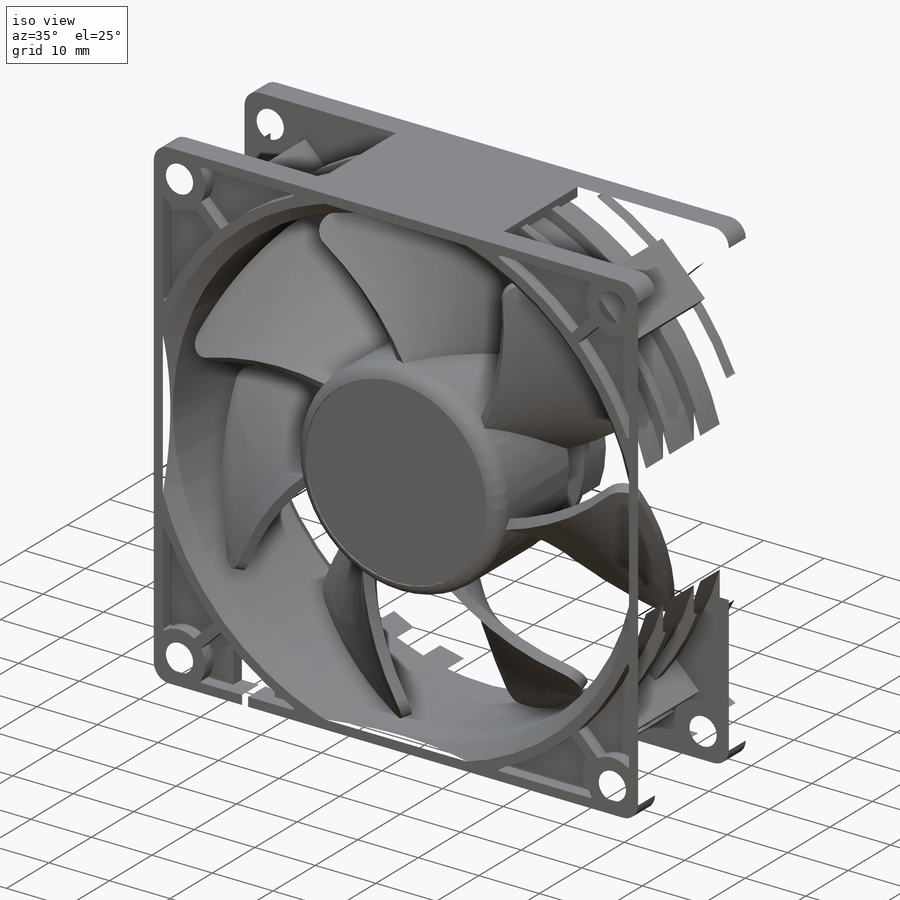
[diagram: iso view]
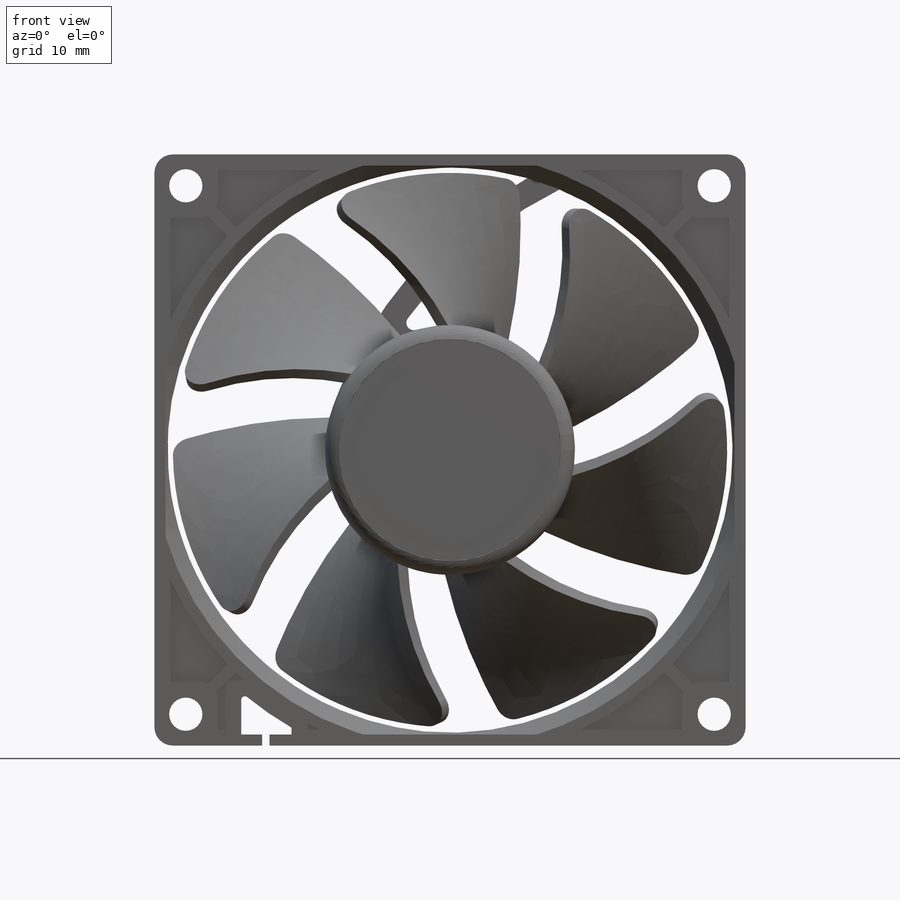
[diagram: front view]
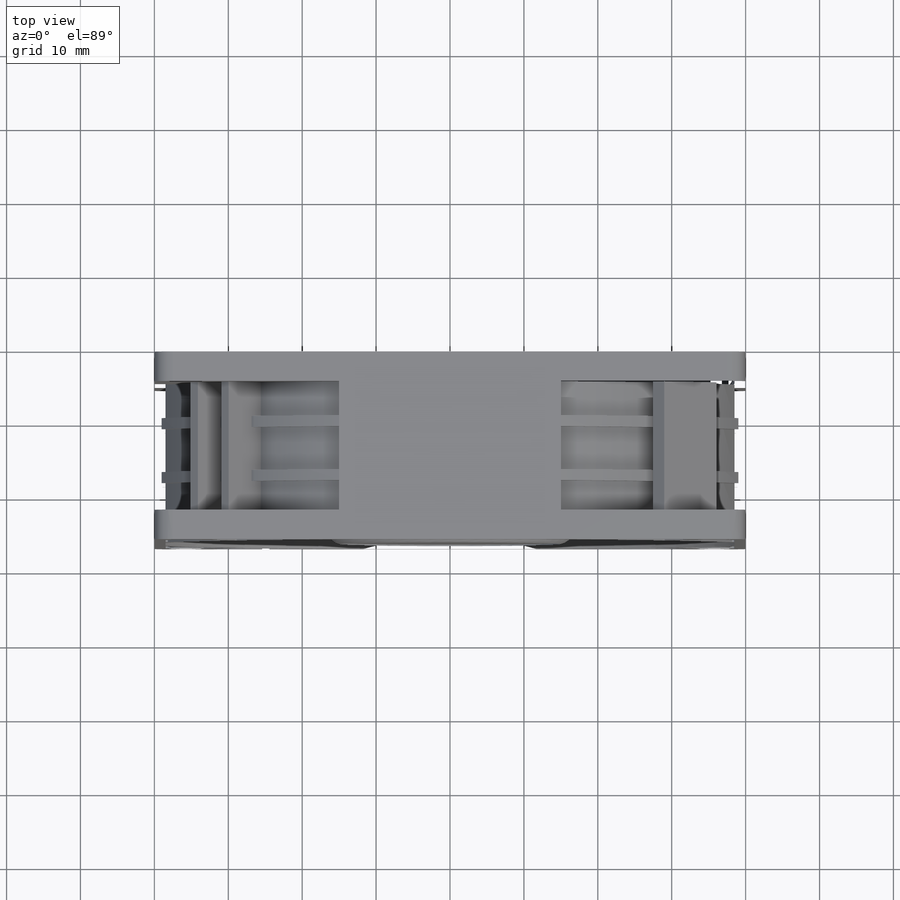
[diagram: top view]
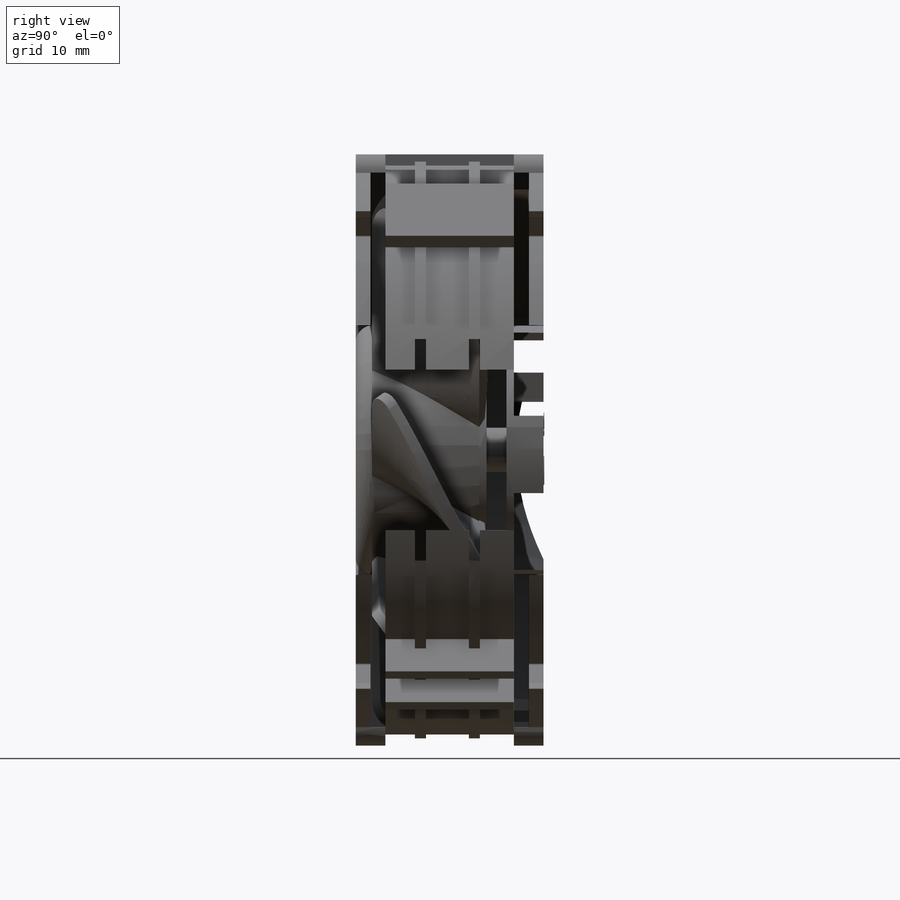
[diagram: right view]
SOLIDWORKS PART (.sldprt)
format: sldprt  version: not decoded by parser v0  size: 3,753,984 bytes
history: native  units: mm
features: sketch x22, extrude x13, plane x9, fillet x5, cut_extrude x4, chamfer x2, material x1, shell x1, sweep x1, surface_op x1, mirror x1, pattern_circular x1 (+8 scaffold rows collapsed)
feature tree (69):
  scaffold x8  (default folders/planes/origin — collapsed)
  material  "材質 <未指定>"
  plane  "前基準面"
  plane  "上基準面"
  plane  "右基準面"
  sketch  "草圖1"  dims[D1=33.8mm]
  extrude  "伸長1"  Depth=16.7mm
  shell  "薄殼1"  Thickness=2mm
  sketch  "草圖5"  dims[D1=33.8mm D2=30.8mm]
  extrude  "伸長3"  [1 undecoded]
  plane  "平面3"  Offset=3.7mm
  sketch  "草圖6"  dims[D1=33.8mm]
  extrude  "伸長4"  Depth=5mm
  sketch  "草圖16"  dims[D1=6.0mm]
  extrude  "伸長5"  [1 undecoded]
  sketch  "草圖17"  dims[D1=~15.487199mm]
  extrude  "伸長6"  Depth=14mm
  sketch  "草圖18"  dims[D5=76.5mm D1=80.0mm D2=80.0mm D3=40.0mm D4=40.0mm]
  extrude  "伸長7"  Depth=16.7mm
  sketch  "草圖20"  dims[c1.D1=5.0mm c1.D2=5.0mm c2.D1=30.0mm c2.D2=28.0mm c2.D3=40.0mm c2.D4=4.0mm c2.D5=5.0mm c3.D2=4.0mm c3.D1=59.0mm]
  sketch  "草圖21"  dims[D1=80.0mm]
  sweep  "除料-掃出2"
  chamfer  "導角9"  Distance=4mm
  plane  "平面4"  Offset=19mm
  sketch  "草圖23"  dims[c1.D1=~2.622396mm c1.D4=4.5mm c2.D1=4.25mm c2.D2=4.25mm c2.D5=105.0mm c2.D6=105.0mm c2.D3=2.0 c3.D5=2.0]
  chamfer  "導角5"  Distance=2mm Angle=45deg
  fillet  "圓角6"  Radius=2.5mm
  sketch  "草圖27"  dims[D1=30.0mm]
  cut_extrude  "伸長14"  Depth=0.2mm
  sketch  "草圖33"
  extrude  "伸長20"  Depth=0.1mm
  fillet  "圓角13"  Radius=2.5mm
  plane  "平面5"  Offset=2mm
  sketch  "草圖34"  dims[D1=75.0mm]
  sketch  "草圖35"  dims[D1=~21.278413mm]
  sketch  "草圖36"
  surface_op  "曲面-伸長1"
  fillet  "圓角18"  Radius=2.5mm
  fillet  "圓角20"  Radius=2.5mm
  plane  "平面6"  Offset=9.5mm
  sketch  "草圖40"  dims[D1=1.8mm D2=1.5mm]
  extrude  "填料-伸長1"  Depth=1.5mm
  plane  "平面7"  Offset=5.8mm
  sketch  "草圖41"  dims[c1.D1=2.5mm c1.D2=2.5mm c1.D3=2.5mm c1.D4=2.5mm c1.D5=2.5mm c2.D1=1.8mm c2.D2=1.5mm c2.D3=1.5mm c2.D4=1.5mm c2.D5=1.5mm]
  extrude  "填料-伸長2"  Depth=1.5mm
  sketch  "草圖42"  dims[c1.D1=~96.431797mm c2.D1=45.0deg c2.D6=~14.819143mm c3.D6=90.0deg c3.D8=~13.112107mm c4.D8=90.0deg c4.D9=46.0mm c4.D2=~68.187577mm c5.D2=90.0deg c5.D3=41.0mm c5.D4=10.0mm c5.D5=5.0mm c5.D6=40.0mm c5.D8=7.0mm c5.D13=~58.130331mm c6.D6=40.0mm c6.D14=1.4mm c6.D15=4.5mm c6.D16=4.1mm c7.D15=4.5mm c7.D16=~13.79795mm c8.D16=90.0deg c9.D16=1.4mm c9.D2=2.25mm c9.D6=1.4mm c9.D13=40.0mm c10.D16=10.0mm c10.D17=~0.567209mm c10.D13=46.0mm c11.D17=~0.989949mm c12.D17=90.0deg c12.D7=7.0mm c12.D16=~1.603386mm c12.D2=5.35mm c12.D3=5.35mm c12.D4=2.2mm c12.D5=2.2mm c12.D10=2.2mm c12.D11=1.1mm c12.D12=1.1mm]
  extrude  "填料-伸長3"  [1 undecoded]
  sketch  "草圖45"  dims[c1.D7=0.2mm c1.D10=0.2mm c1.D11=0.2mm c1.D1=1.5mm c1.D2=1.5mm c1.D3=1.5mm c1.D4=1.5mm c2.D2=2.0mm c2.D5=0.8mm c2.D6=0.8mm c2.D8=2.0mm c2.D9=2.0mm c3.D2=2.0mm c3.D8=2.0mm c4.D2=4.0]
  cut_extrude  "除料-伸長6"  Depth=2mm
  plane  "平面8"  Offset=12.7mm
  mirror  "鏡射1"
  pattern_circular  "環狀複製排列20"  Count=7 Angle=360deg
  sketch  "草圖47"  dims[c1.D2=0.5mm c1.D3=0.2mm c2.D2=0.5mm c2.D4=7.5mm c2.D5=6.8mm c2.D6=1.0mm c2.D7=~6.166879mm c2.D1=1.5mm c3.D4=0.5mm c3.D5=0.5mm]
  cut_extrude  "除料-伸長7"  [1 undecoded]
  sketch  "草圖48"  dims[D1=30.0mm D2=25.0mm D3=1.5mm D4=4.0]
  extrude  "填料-伸長4"  Depth=25.4mm
  cut_extrude  "除料-伸長8"  [1 undecoded]
  sketch  "草圖49"  dims[D1=3.4mm D2=4.0]
  extrude  "填料-伸長5"  Depth=4mm
  fillet  "圓角21"  Radius=1mm
  sketch  "草圖51"  dims[D1=2.8mm D2=2.8mm D3=4.0]
  extrude  "填料-伸長6"  Depth=4mm
decode coverage: 41 of 51 modeling features carry decoded parameters
note: ~ marks probable driven/reference dimensions
note: 5 parameter values undecoded
summary: no parameter record found for 5 features
note: suppression state not decoded; provenance and decode notes live in map.json
